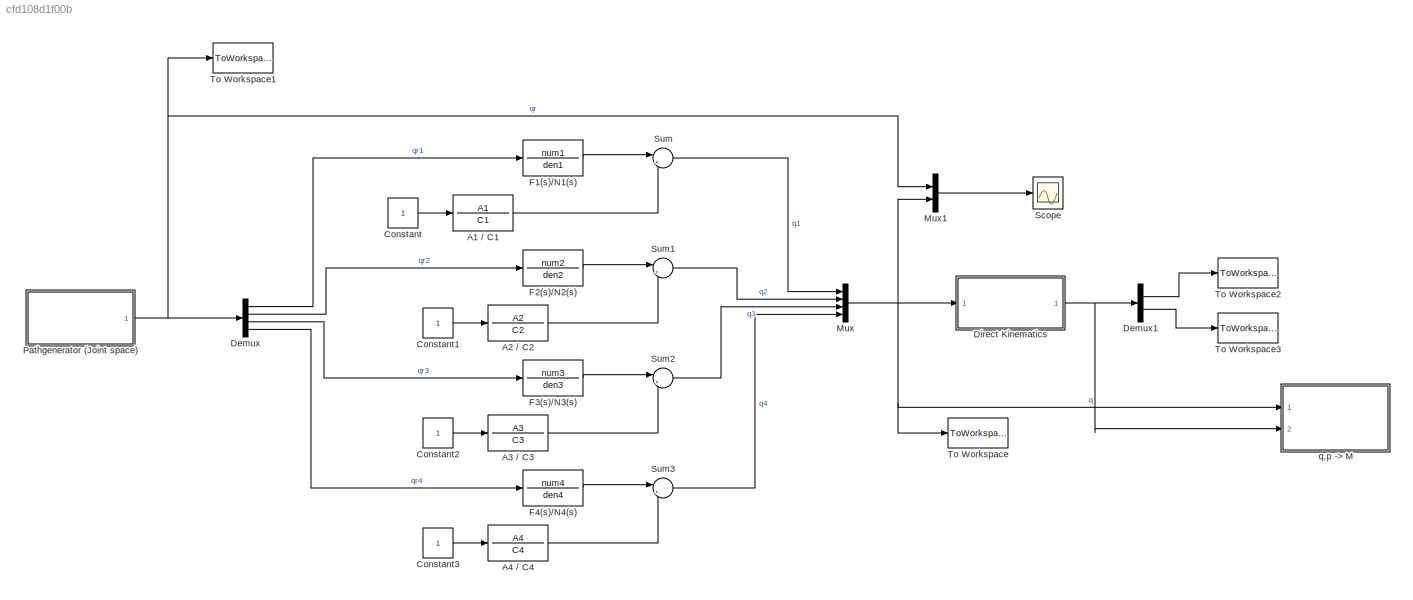
MODEL slx_cfd108d1f00b
KIND model
CONFIG AbsTol = auto
CONFIG EnableMultiTasking = off
CONFIG FixedStep = auto
CONFIG MaxStep = auto
CONFIG MinStep = auto
CONFIG RelTol = 1e-3
CONFIG SampleTimeConstraint = Unconstrained
CONFIG Solver = VariableStepAuto
CONFIG SolverName = VariableStepAuto
CONFIG StartTime = 0.0
CONFIG StopTime = 8
BLOCK [TransferFcn] A1 // C1
  Denominator = C1
  Numerator = A1
BLOCK [TransferFcn] A2 // C2 
  Denominator = C2
  Numerator = A2
BLOCK [TransferFcn] A3 // C3 
  Denominator = C3
  Numerator = A3
BLOCK [TransferFcn] A4 // C4
  Denominator = C4
  Numerator = A4
BLOCK [Constant] Constant
BLOCK [Constant] Constant1
BLOCK [Constant] Constant2
BLOCK [Constant] Constant3
BLOCK [Demux] Demux
  DisplayOption = bar
  Ports = [1, 4]
BLOCK [Demux] Demux1
  DisplayOption = bar
  Outputs = 2
  Ports = [1, 2]
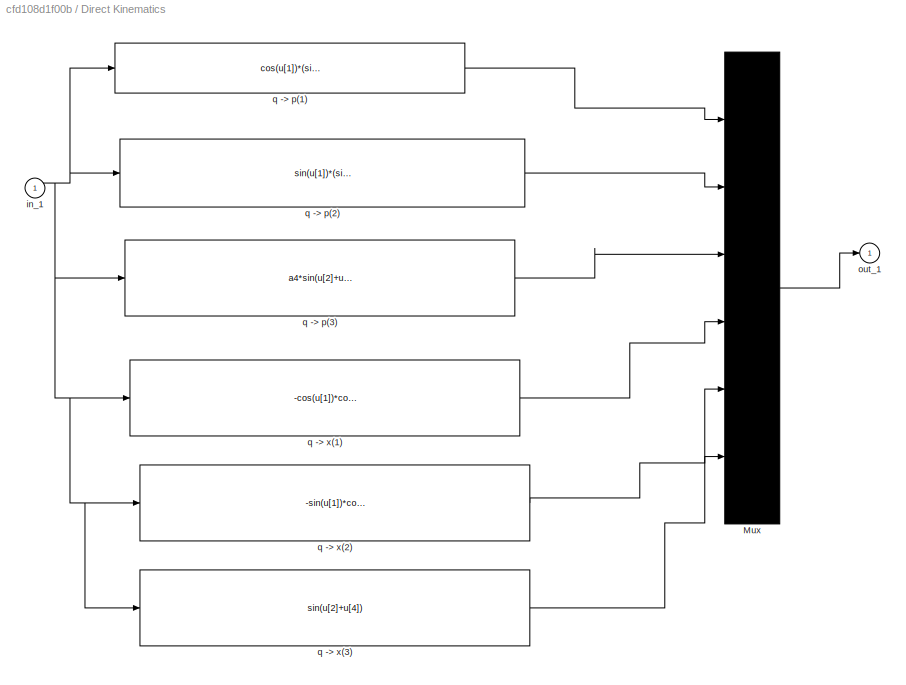
BLOCK [SubSystem] Direct Kinematics
  Ports = [1, 1]
  RequestExecContextInheritance = off
  ShowPortLabels = none
BLOCK [Mux] Direct Kinematics/Mux
  Inputs = 6
  Ports = [6, 1]
BLOCK [Inport] Direct Kinematics/in_1
  IconDisplay = Port number
BLOCK [Outport] Direct Kinematics/out_1
  IconDisplay = Port number
  InitialOutput = 0
  VectorParamsAs1DForOutWhenUnconnected = off
BLOCK [Fcn] Direct Kinematics/q -> p(1)
  Expr = cos(u[1])*(sin(u[2])*u[3]-a4*cos(u[2]+u[4]) )
BLOCK [Fcn] Direct Kinematics/q -> p(2)
  Expr = sin(u[1])*(sin(u[2])*u[3]-a4*cos(u[2]+u[4]))
BLOCK [Fcn] Direct Kinematics/q -> p(3)
  Expr = a4*sin(u[2]+u[4]) + cos(u[2])*u[3]+d1
BLOCK [Fcn] Direct Kinematics/q -> x(1)
  Expr = -cos(u[1])*cos(u[2]+u[4])
BLOCK [Fcn] Direct Kinematics/q -> x(2)
  Expr = -sin(u[1])*cos(u[2]+u[4])
BLOCK [Fcn] Direct Kinematics/q -> x(3)
  Expr = sin(u[2]+u[4])
BLOCK [TransferFcn] F1(s)//N1(s)
  Denominator = den1
  Numerator = num1
BLOCK [TransferFcn] F2(s)//N2(s)
  Denominator = den2
  Numerator = num2
BLOCK [TransferFcn] F3(s)//N3(s)
  Denominator = den3
  Numerator = num3
BLOCK [TransferFcn] F4(s)//N4(s)
  Denominator = den4
  Numerator = num4
BLOCK [Mux] Mux
  DisplayOption = bar
  Ports = [4, 1]
BLOCK [Mux] Mux1
  DisplayOption = bar
  Inputs = 2
  Ports = [2, 1]
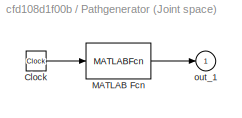
BLOCK [SubSystem] Pathgenerator (Joint space)
  Ports = [0, 1]
  RequestExecContextInheritance = off
  ShowPortLabels = none
BLOCK [Clock] Pathgenerator (Joint space)/Clock
BLOCK [MATLABFcn] Pathgenerator (Joint space)/MATLAB Fcn
  MATLABFcn = J_path
  OutputDimensions = 4
  Ports = [1, 1]
BLOCK [Outport] Pathgenerator (Joint space)/out_1
  IconDisplay = Port number
  VectorParamsAs1DForOutWhenUnconnected = off
BLOCK [Scope] Scope
  Floating = off
  NumInputPorts = 1
  Ports = [1]
  ScopeSpecificationString = Simulink.scopes.TimeScopeBlockCfg('CurrentConfiguration', extmgr.ConfigurationSet(extmgr.Configuration('Core','General UI',true),extmgr.Configuration('Core','Source UI',true),extmgr.Configuration('Sources','WiredSimulink',true),extmgr.Configuration('Visuals','Time Domain',true),extmgr.Configuration('Tools','Plot Navigation',true),extmgr.Configuration('Tools','Measurements',true)),'Version','2019b'...<+1ch>
BLOCK [Sum] Sum
  IconShape = round
  InputSameDT = off
  Inputs = |+-
  OutDataTypeStr = Inherit: Inherit via internal rule
  Ports = [2, 1]
  SaturateOnIntegerOverflow = off
BLOCK [Sum] Sum1
  IconShape = round
  InputSameDT = off
  Inputs = |+-
  OutDataTypeStr = Inherit: Inherit via internal rule
  Ports = [2, 1]
  SaturateOnIntegerOverflow = off
BLOCK [Sum] Sum2
  IconShape = round
  InputSameDT = off
  Inputs = |+-
  OutDataTypeStr = Inherit: Inherit via internal rule
  Ports = [2, 1]
  SaturateOnIntegerOverflow = off
BLOCK [Sum] Sum3
  IconShape = round
  InputSameDT = off
  Inputs = |+-
  OutDataTypeStr = Inherit: Inherit via internal rule
  Ports = [2, 1]
  SaturateOnIntegerOverflow = off
BLOCK [ToWorkspace] To Workspace
  MaxDataPoints = inf
  Ports = [1]
  SampleTime = -1
  SaveFormat = Timeseries
  VariableName = q
BLOCK [ToWorkspace] To Workspace1
  MaxDataPoints = inf
  Ports = [1]
  SampleTime = -1
  SaveFormat = Timeseries
  VariableName = qr
BLOCK [ToWorkspace] To Workspace2
  MaxDataPoints = inf
  Ports = [1]
  SampleTime = -1
  SaveFormat = Timeseries
  VariableName = p
BLOCK [ToWorkspace] To Workspace3
  MaxDataPoints = inf
  Ports = [1]
  SampleTime = -1
  SaveFormat = Timeseries
  VariableName = x
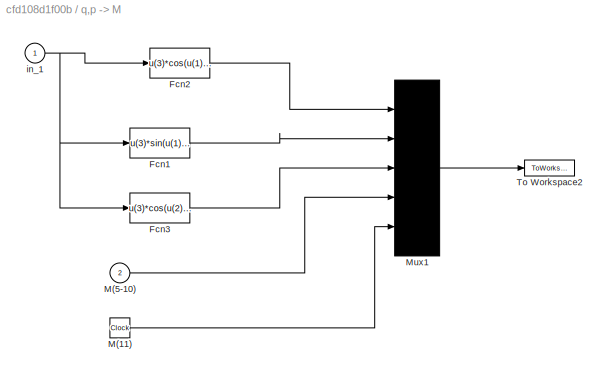
BLOCK [SubSystem] q,p -> M
  Ports = [2]
  RequestExecContextInheritance = off
  ShowPortLabels = none
BLOCK [Fcn] q,p -> M/Fcn1
  Expr = u(3)*sin(u(1))*sin(u(2))
BLOCK [Fcn] q,p -> M/Fcn2
  Expr = u(3)*cos(u(1))*sin(u(2))
BLOCK [Fcn] q,p -> M/Fcn3
  Expr = u(3)*cos(u(2)) +d1
BLOCK [Clock] q,p -> M/M(11)
BLOCK [Inport] q,p -> M/M(5-10)
  IconDisplay = Port number
  Port = 2
BLOCK [Mux] q,p -> M/Mux1
  Inputs = [1 1 1 6 1]
  Ports = [5, 1]
BLOCK [ToWorkspace] q,p -> M/To Workspace2
  MaxDataPoints = 100000
  Ports = [1]
  VariableName = M
BLOCK [Inport] q,p -> M/in_1
  IconDisplay = Port number
LINE A1 // C1:1 -> Sum:2
LINE A2 // C2 :1 -> Sum1:2
LINE A3 // C3 :1 -> Sum2:2
LINE A4 // C4:1 -> Sum3:2
LINE Constant1:1 -> A2 // C2 :1
LINE Constant2:1 -> A3 // C3 :1
LINE Constant3:1 -> A4 // C4:1
LINE Constant:1 -> A1 // C1:1
LINE Demux1:1 -> To Workspace2:1
LINE Demux1:2 -> To Workspace3:1
LINE Demux:1 -> F1(s)//N1(s):1
LINE Demux:2 -> F2(s)//N2(s):1
LINE Demux:3 -> F3(s)//N3(s):1
LINE Demux:4 -> F4(s)//N4(s):1
LINE Direct Kinematics/Mux:1 -> Direct Kinematics/out_1:1
NET Direct Kinematics/in_1:1 -> Direct Kinematics/q -> p(1):1, Direct Kinematics/q -> p(2):1, Direct Kinematics/q -> p(3):1, Direct Kinematics/q -> x(1):1, Direct Kinematics/q -> x(2):1, Direct Kinematics/q -> x(3):1
LINE Direct Kinematics/q -> p(1):1 -> Direct Kinematics/Mux:1
LINE Direct Kinematics/q -> p(2):1 -> Direct Kinematics/Mux:2
LINE Direct Kinematics/q -> p(3):1 -> Direct Kinematics/Mux:3
LINE Direct Kinematics/q -> x(1):1 -> Direct Kinematics/Mux:4
LINE Direct Kinematics/q -> x(2):1 -> Direct Kinematics/Mux:5
LINE Direct Kinematics/q -> x(3):1 -> Direct Kinematics/Mux:6
NET Direct Kinematics:1 -> Demux1:1, q,p -> M:2
LINE F1(s)//N1(s):1 -> Sum:1
LINE F2(s)//N2(s):1 -> Sum1:1
LINE F3(s)//N3(s):1 -> Sum2:1
LINE F4(s)//N4(s):1 -> Sum3:1
LINE Mux1:1 -> Scope:1
NET Mux:1 -> Direct Kinematics:1, Mux1:2, To Workspace:1, q,p -> M:1
LINE Pathgenerator (Joint space)/Clock:1 -> Pathgenerator (Joint space)/MATLAB Fcn:1
LINE Pathgenerator (Joint space)/MATLAB Fcn:1 -> Pathgenerator (Joint space)/out_1:1
NET Pathgenerator (Joint space):1 -> Demux:1, Mux1:1, To Workspace1:1
LINE Sum1:1 -> Mux:2
LINE Sum2:1 -> Mux:3
LINE Sum3:1 -> Mux:4
LINE Sum:1 -> Mux:1
LINE q,p -> M/Fcn1:1 -> q,p -> M/Mux1:2
LINE q,p -> M/Fcn2:1 -> q,p -> M/Mux1:1
LINE q,p -> M/Fcn3:1 -> q,p -> M/Mux1:3
LINE q,p -> M/M(11):1 -> q,p -> M/Mux1:5
LINE q,p -> M/M(5-10):1 -> q,p -> M/Mux1:4
LINE q,p -> M/Mux1:1 -> q,p -> M/To Workspace2:1
NET q,p -> M/in_1:1 -> q,p -> M/Fcn1:1, q,p -> M/Fcn2:1, q,p -> M/Fcn3:1
note: NET lines group one-source signal fan-out (src -> all destinations, sorted); 1:1 wires keep LINE
